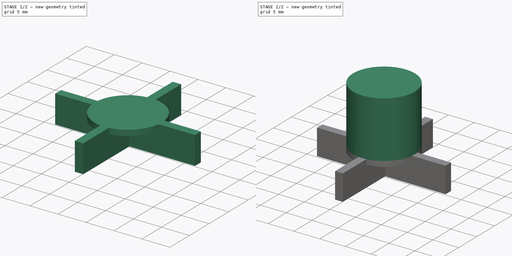
[diagram: build sequence overview — one tinted view per stage of 2, left to right]
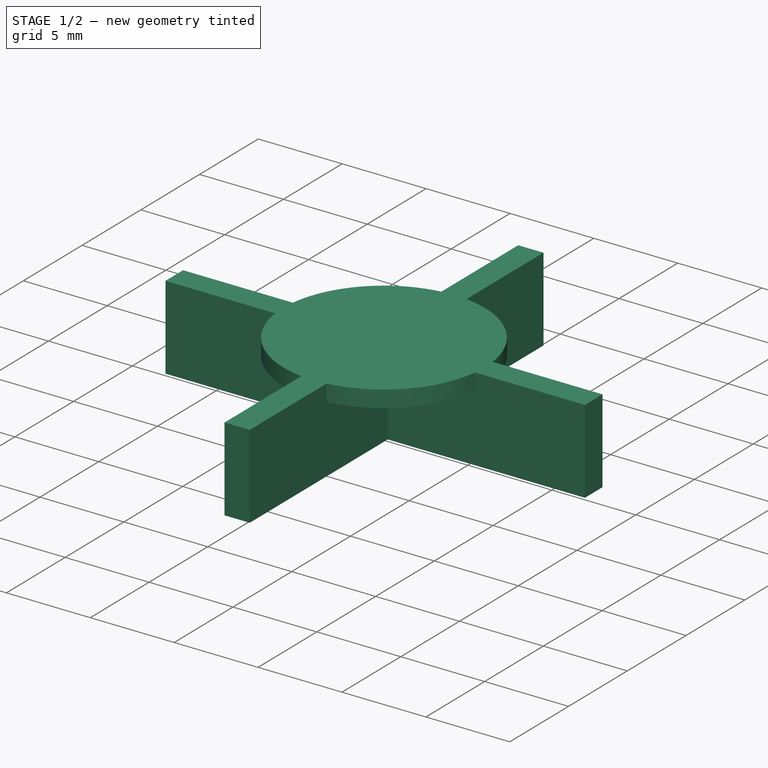
[diagram: stage 1 of 2 — iso view after this stage's code; geometry added in this stage tinted green]
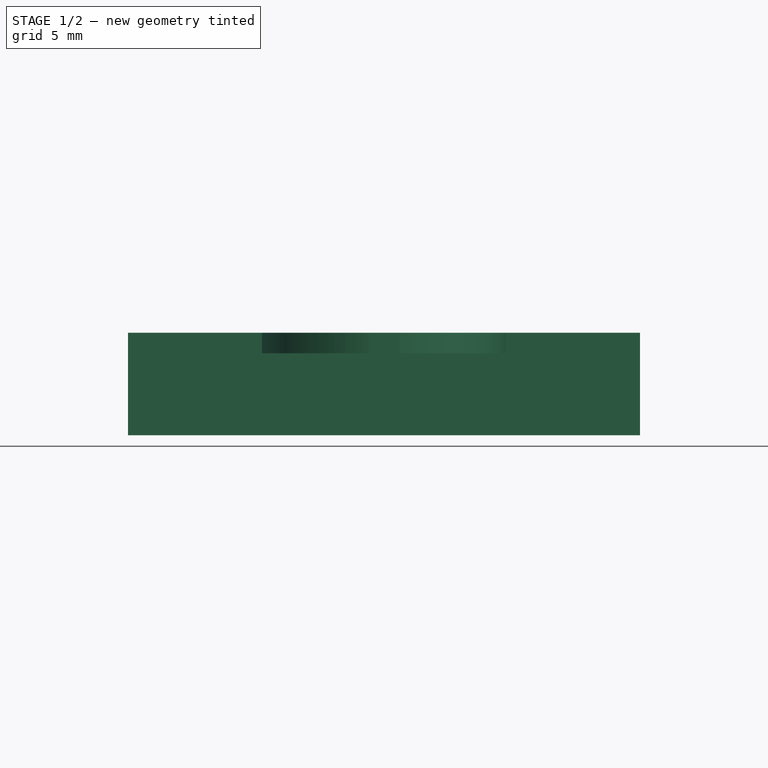
[diagram: stage 1 of 2 — front view after this stage's code; geometry added in this stage tinted green]
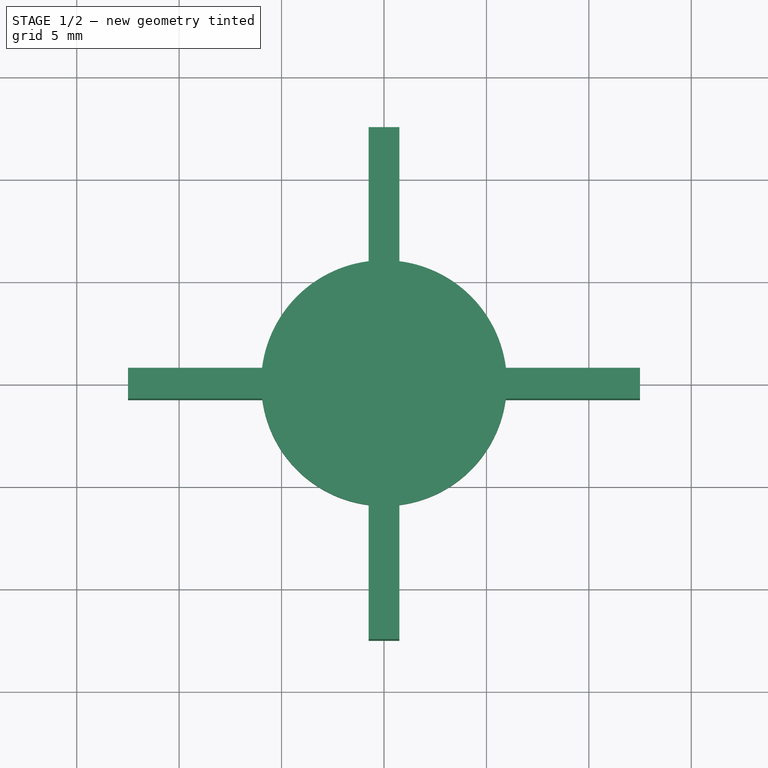
[diagram: stage 1 of 2 — top view after this stage's code; geometry added in this stage tinted green]
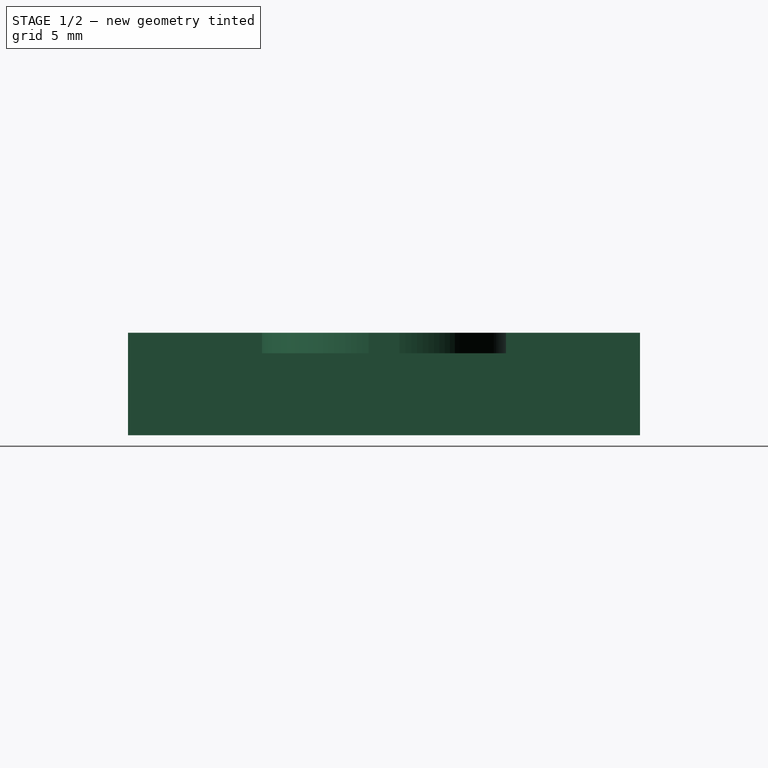
[diagram: stage 1 of 2 — right view after this stage's code; geometry added in this stage tinted green]
FCSTD DOCUMENT  (FreeCAD 0.20R29603 (Git))
Label: ChargerSupport
License: All rights reserved
LicenseURL: http://en.wikipedia.org/wiki/All_rights_reserved
objects: Sketcher::SketchObject×3, PartDesign::Pad×3, PartDesign::Body×1
note: 10 computed .brp shape members not serialized (recipe doc carries the construction recipe); baked Part::Feature solids carry a one-line shape summary decoded from their .brp

FEATURE [Sketcher::SketchObject] Sketch
  FullyConstrained = true
  MapMode = 5
  Support = -> [XY_Plane]
  sketch-geometry (19):
    g0: LineSegment StartX=-0.75 StartY=12.5 StartZ=0 EndX=-0.75 EndY=0.75 EndZ=0
    g1: LineSegment StartX=-0.75 StartY=-12.5 StartZ=0 EndX=0.75 EndY=-12.5 EndZ=0
    g2: LineSegment StartX=0.75 StartY=-12.5 StartZ=0 EndX=0.75 EndY=-0.75 EndZ=0
    g3: LineSegment StartX=0.75 StartY=12.5 StartZ=0 EndX=-0.75 EndY=12.5 EndZ=0
    g4: GeomPoint X=0 Y=0 Z=0
    g5: LineSegment StartX=-12.5 StartY=0.75 StartZ=0 EndX=-12.5 EndY=-0.75 EndZ=0
    g6: LineSegment StartX=-12.5 StartY=-0.75 StartZ=0 EndX=-0.75 EndY=-0.75 EndZ=0
    g7: LineSegment StartX=12.5 StartY=-0.75 StartZ=0 EndX=12.5 EndY=0.75 EndZ=0
    g8: LineSegment StartX=12.5 StartY=0.75 StartZ=0 EndX=0.75 EndY=0.75 EndZ=0
    g9: GeomPoint X=0 Y=0 Z=0
    g10: LineSegment StartX=-0.75 StartY=0.75 StartZ=0 EndX=-12.5 EndY=0.75 EndZ=0
    g11: LineSegment StartX=-0.75 StartY=-0.75 StartZ=0 EndX=-0.75 EndY=-12.5 EndZ=0
    g12: LineSegment StartX=0.75 StartY=0.75 StartZ=0 EndX=0.75 EndY=12.5 EndZ=0
    g13: LineSegment StartX=0.75 StartY=-0.75 StartZ=0 EndX=12.5 EndY=-0.75 EndZ=0
    g14: LineSegment StartX=-0.75 StartY=0.75 StartZ=0 EndX=-0.75 EndY=-0.75 EndZ=0
    g15: LineSegment StartX=-0.75 StartY=-0.75 StartZ=0 EndX=0.75 EndY=-0.75 EndZ=0
    g16: LineSegment StartX=0.75 StartY=-0.75 StartZ=0 EndX=0.75 EndY=0.75 EndZ=0
    g17: LineSegment StartX=0.75 StartY=0.75 StartZ=0 EndX=-0.75 EndY=0.75 EndZ=0
    g18: GeomPoint X=0 Y=0 Z=0
  constraints (44):
    c: Coincident(g11,g1)
    c: Coincident(g1,g2)
    c: Coincident(g12,g3)
    c: Coincident(g3,g0)
    c: Horizontal(g1)
    c: Horizontal(g3)
    c: Vertical(g0)
    c: Symmetric(g1,g0,g4)
    c: Coincident(g4,g-1)
    c: Coincident(g5,g6)
    c: Coincident(g13,g7)
    c: Coincident(g7,g8)
    c: Coincident(g10,g5)
    c: Horizontal(g6)
    c: Horizontal(g8)
    c: Vertical(g5)
    c: Vertical(g7)
    c: Symmetric(g13,g5,g9)
    c: Coincident(g9,g4)
    c: Coincident(g0,g10)
    c: Coincident(g12,g8)
    c: Coincident(g6,g11)
    c: Coincident(g13,g2)
    c: Coincident(g14,g15)
    c: Coincident(g15,g16)
    c: Coincident(g16,g17)
    c: Coincident(g17,g14)
    c: Horizontal(g15)
    c: Horizontal(g17)
    c: Vertical(g14)
    c: Vertical(g16)
    c: Symmetric(g15,g14,g18)
    c: Coincident(g18,g4)
    c: Coincident(g0,g14)
    c: Coincident(g16,g8)
    c: Coincident(g2,g15)
    c: Coincident(g6,g14)
    c: Horizontal(g10)
    c: DistanceX(g5,g7) = 25
    c: Vertical(g12)
    c: Vertical(g11)
    c: DistanceY(g1,g0) = 25
    c: DistanceY(g7,g7) = 1.5
    c: DistanceX(g3,g3) = 1.5
FEATURE [PartDesign::Pad] Pad
  Direction = (0,0,1)
  Length = 5
  Length2 = 10
  Profile = -> Sketch
  ReferenceAxis = -> Sketch [N_Axis]
  Type = 0
FEATURE [Sketcher::SketchObject] Sketch001
  FullyConstrained = true
  MapMode = 5
  Placement = pos=(0,0,5) rot=(0,0,1;0rad)
  Support = -> [Pad]
  sketch-geometry (1):
    g0: Circle CenterX=0 CenterY=0 CenterZ=0 NormalX=0 NormalY=0 NormalZ=1 AngleXU=0 Radius=6
  constraints (2):
    c: Coincident(g0,g-1)
    c: Diameter(g0) = 12
FEATURE [PartDesign::Pad] Pad001
  BaseFeature = -> Pad
  Direction = (0,0,1)
  Length = 1
  Length2 = 10
  Profile = -> Sketch001
  ReferenceAxis = -> Sketch001 [N_Axis]
  Reversed = true
  Type = 0
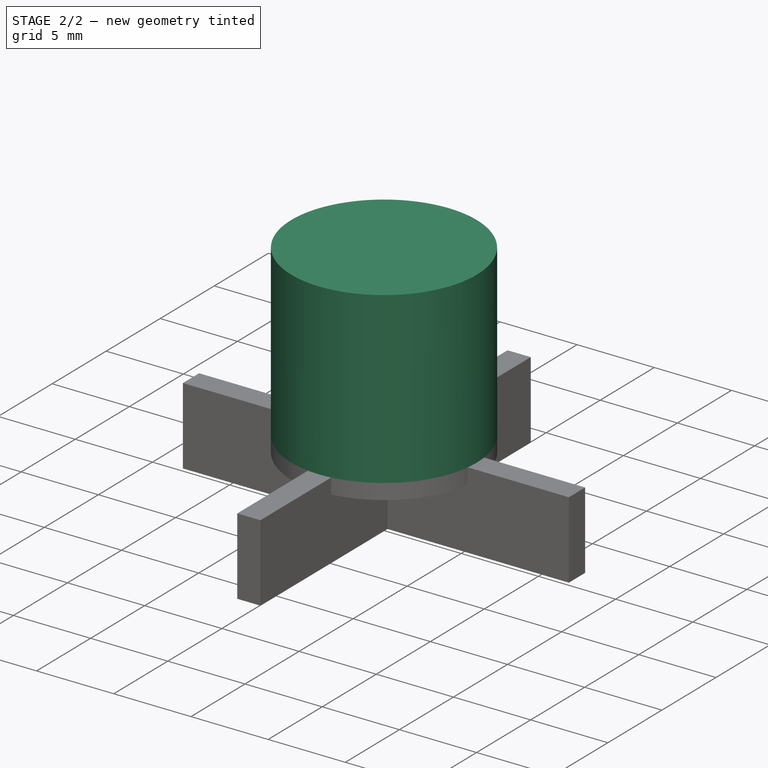
[diagram: stage 2 of 2 — iso view after this stage's code; geometry added in this stage tinted green]
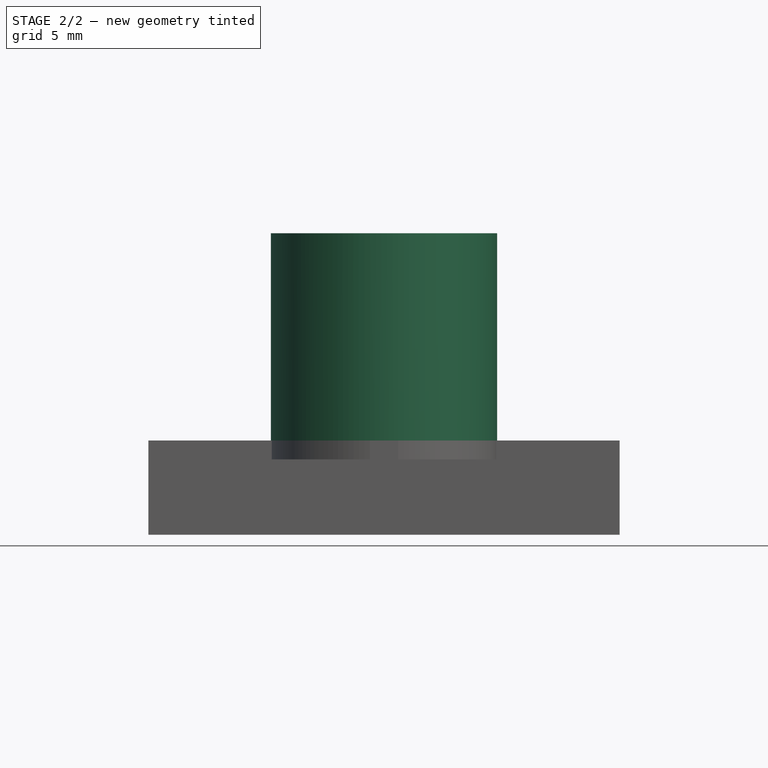
[diagram: stage 2 of 2 — front view after this stage's code; geometry added in this stage tinted green]
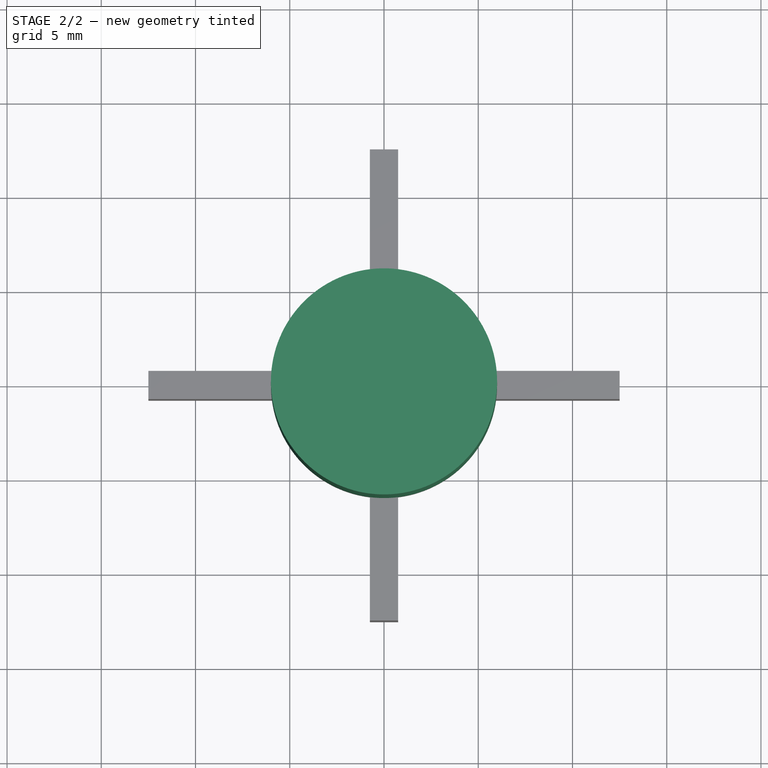
[diagram: stage 2 of 2 — top view after this stage's code; geometry added in this stage tinted green]
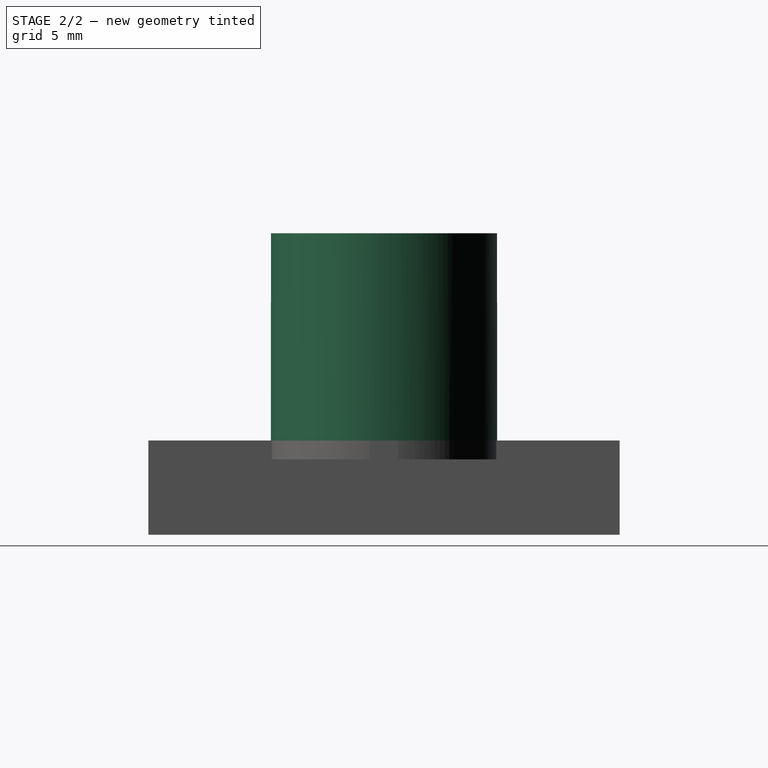
[diagram: stage 2 of 2 — right view after this stage's code; geometry added in this stage tinted green]
FEATURE [Sketcher::SketchObject] Sketch002
  FullyConstrained = true
  MapMode = 5
  Placement = pos=(0,0,5) rot=(0,0,1;0rad)
  Support = -> [Pad001]
  sketch-geometry (1):
    g0: Circle CenterX=0 CenterY=0 CenterZ=0 NormalX=0 NormalY=0 NormalZ=1 AngleXU=0 Radius=6
  constraints (2):
    c: Coincident(g0,g-1)
    c: Diameter(g0) = 12
FEATURE [PartDesign::Pad] Pad002
  BaseFeature = -> Pad001
  Direction = (0,0,1)
  Length = 11
  Length2 = 10
  Profile = -> Sketch002
  ReferenceAxis = -> Sketch002 [N_Axis]
  Type = 0
FEATURE [PartDesign::Body] Body
  Group = -> [Sketch,Pad,Sketch001,Pad001,Sketch002,Pad002]
  Origin = -> Origin
  Tip = -> Pad002
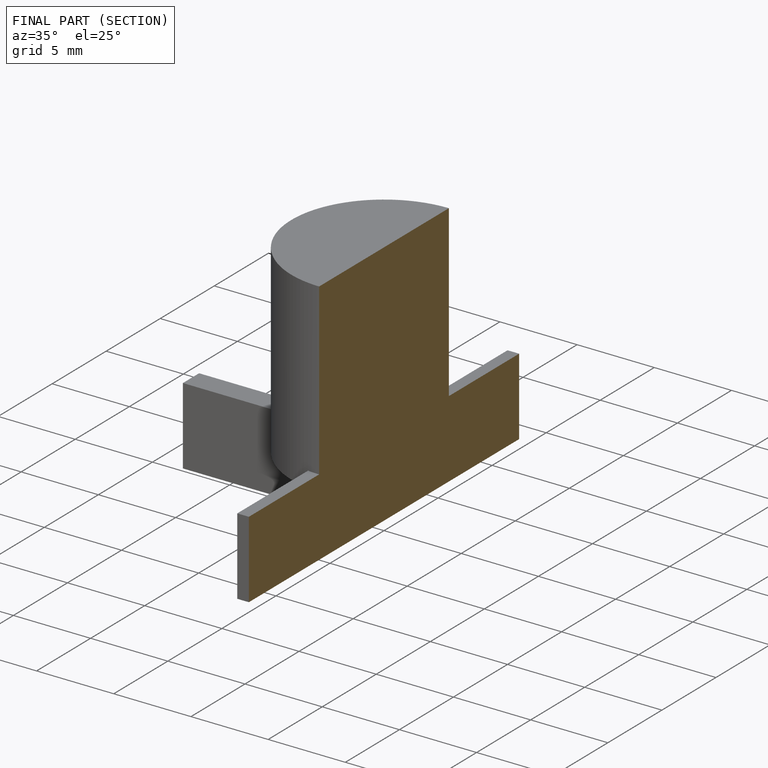
[diagram: finished part — half-section view (interior)]
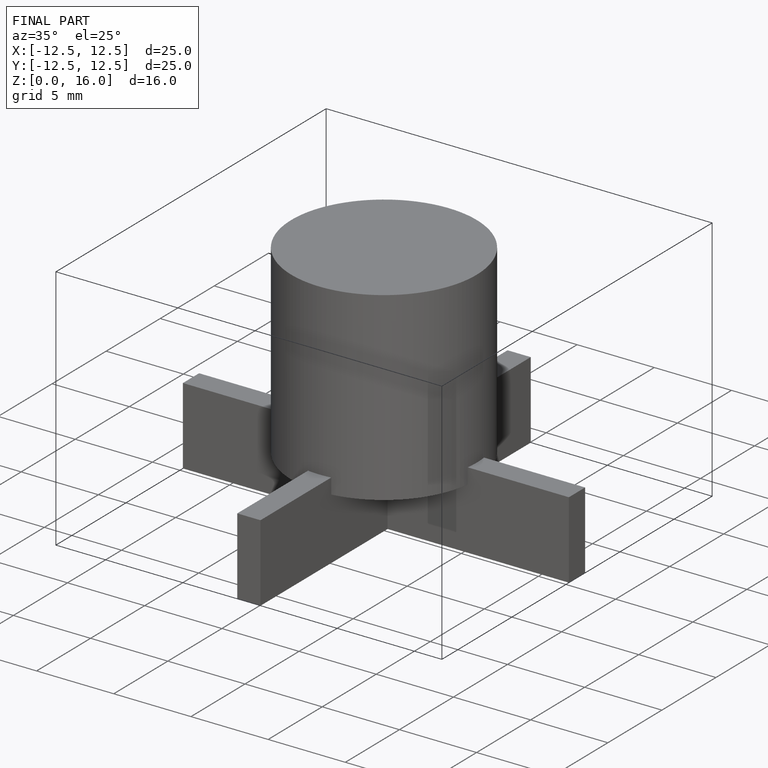
[diagram: finished part — iso view with bounding-box wireframe]
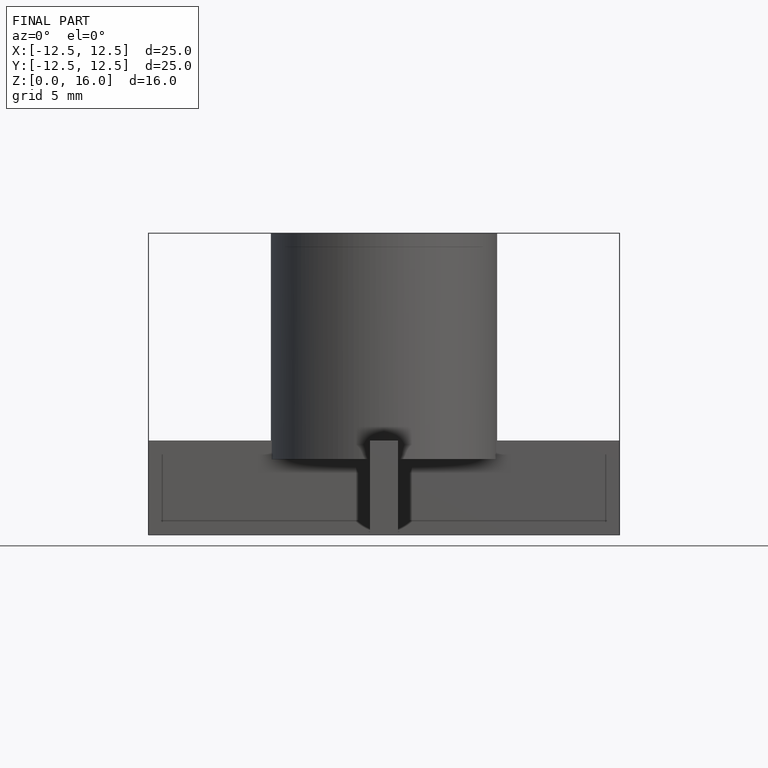
[diagram: finished part — front view with bounding-box wireframe]
